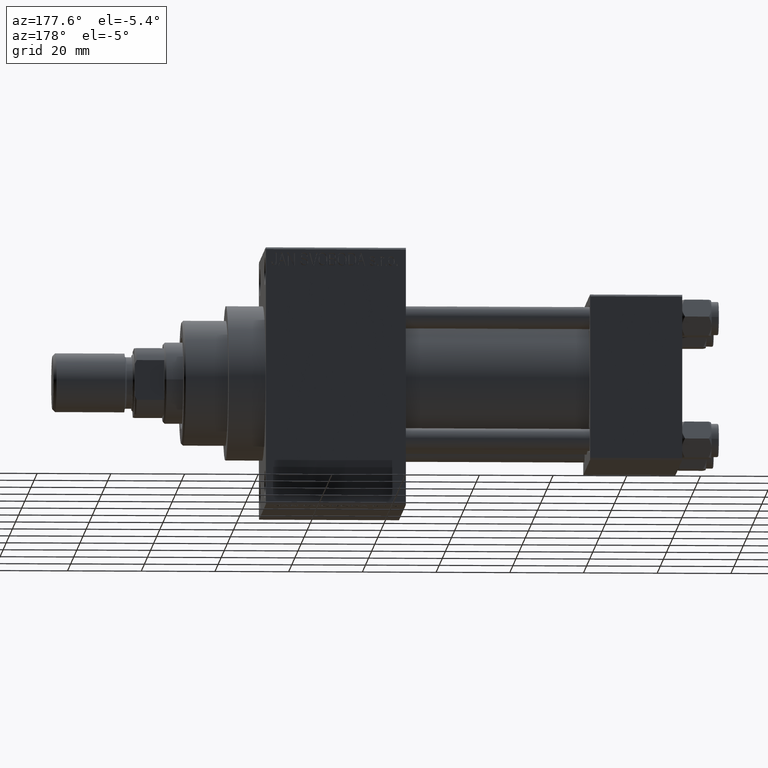
[diagram: clean part render]
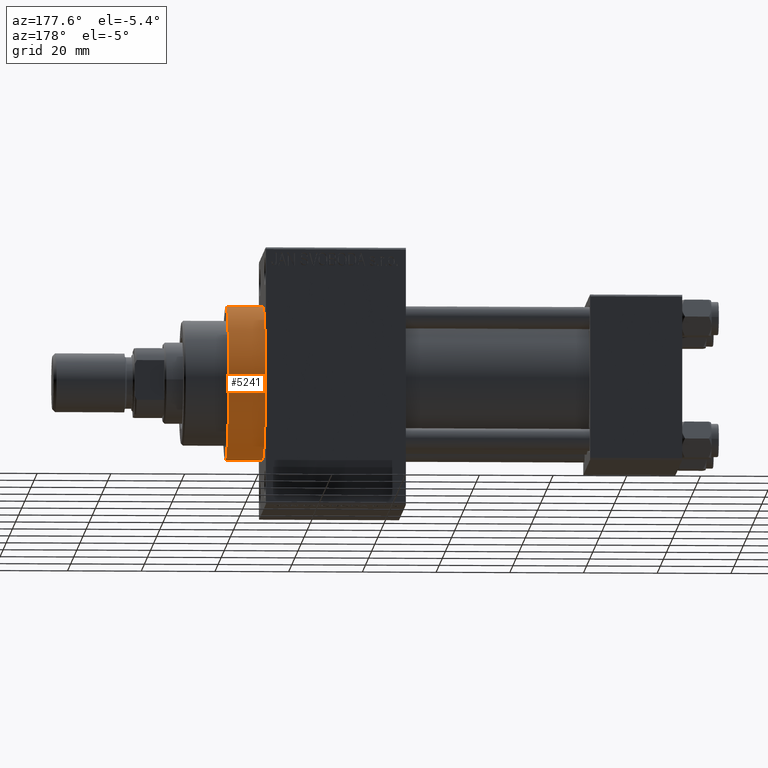
[diagram: same view with one face highlighted and labeled with its STEP entity id]
A machine part, auxiliary view. The second image highlights one B-rep face of the part: STEP entity #5241.
In plain terms, the highlighted cylindrical surface (partial cylindrical patch) has radius 21 mm, axis along (-1, -0, -0).
Its self-contained STEP definition (entity closure, byte-faithful):
#874 = CARTESIAN_POINT ( 'NONE',  ( 123.0000000000000142, 0.000000000000000000, 0.000000000000000000 ) ) ;
#1128 = LINE ( 'NONE', #15574, #33468 ) ;
#2291 = DIRECTION ( 'NONE',  ( 0.000000000000000000, 0.000000000000000000, -1.000000000000000000 ) ) ;
#2499 = CARTESIAN_POINT ( 'NONE',  ( 113.0000000000000142, 0.000000000000000000, 21.00000000000000000 ) ) ;
#4898 = CARTESIAN_POINT ( 'NONE',  ( 113.0000000000000142, 2.571758278209441661E-15, -21.00000000000000000 ) ) ;
#5241 = ADVANCED_FACE ( 'NONE', ( #44606 ), #45545, .T. ) ;
#5858 = LINE ( 'NONE', #42685, #30289 ) ;
#6132 = CARTESIAN_POINT ( 'NONE',  ( 113.0000000000000142, 0.000000000000000000, 0.000000000000000000 ) ) ;
#9237 = DIRECTION ( 'NONE',  ( -1.000000000000000000, -0.000000000000000000, -0.000000000000000000 ) ) ;
#12259 = CIRCLE ( 'NONE', #19924, 21.00000000000000000 ) ;
#12441 = DIRECTION ( 'NONE',  ( -1.000000000000000000, -0.000000000000000000, -0.000000000000000000 ) ) ;
#13165 = CARTESIAN_POINT ( 'NONE',  ( 123.0000000000000142, 0.000000000000000000, 21.00000000000000000 ) ) ;
#15429 = EDGE_CURVE ( 'NONE', #29722, #28702, #5858, .T. ) ;
#15574 = CARTESIAN_POINT ( 'NONE',  ( 123.0000000000000142, 2.571758278209441661E-15, -21.00000000000000000 ) ) ;
#17644 = EDGE_CURVE ( 'NONE', #36155, #44417, #1128, .T. ) ;
#19924 = AXIS2_PLACEMENT_3D ( 'NONE', #874, #37660, #34302 ) ;
#20673 = CIRCLE ( 'NONE', #32981, 21.00000000000000000 ) ;
#22498 = EDGE_LOOP ( 'NONE', ( #28756, #39135, #22649, #25696 ) ) ;
#22649 = ORIENTED_EDGE ( 'NONE', *, *, #25854, .T. ) ;
#25696 = ORIENTED_EDGE ( 'NONE', *, *, #15429, .F. ) ;
#25854 = EDGE_CURVE ( 'NONE', #44417, #28702, #20673, .T. ) ;
#27240 = DIRECTION ( 'NONE',  ( 0.000000000000000000, 0.000000000000000000, 1.000000000000000000 ) ) ;
#28702 = VERTEX_POINT ( 'NONE', #2499 ) ;
#28756 = ORIENTED_EDGE ( 'NONE', *, *, #30676, .F. ) ;
#29722 = VERTEX_POINT ( 'NONE', #13165 ) ;
#30289 = VECTOR ( 'NONE', #9237, 1000.000000000000000 ) ;
#30676 = EDGE_CURVE ( 'NONE', #36155, #29722, #12259, .T. ) ;
#32981 = AXIS2_PLACEMENT_3D ( 'NONE', #6132, #35241, #2291 ) ;
#33468 = VECTOR ( 'NONE', #12441, 1000.000000000000000 ) ;
#34302 = DIRECTION ( 'NONE',  ( 0.000000000000000000, 0.000000000000000000, -1.000000000000000000 ) ) ;
#34702 = DIRECTION ( 'NONE',  ( -1.000000000000000000, -0.000000000000000000, -0.000000000000000000 ) ) ;
#35241 = DIRECTION ( 'NONE',  ( 1.000000000000000000, 0.000000000000000000, 0.000000000000000000 ) ) ;
#36155 = VERTEX_POINT ( 'NONE', #37121 ) ;
#37121 = CARTESIAN_POINT ( 'NONE',  ( 123.0000000000000142, 2.571758278209441661E-15, -21.00000000000000000 ) ) ;
#37660 = DIRECTION ( 'NONE',  ( 1.000000000000000000, 0.000000000000000000, 0.000000000000000000 ) ) ;
#39135 = ORIENTED_EDGE ( 'NONE', *, *, #17644, .T. ) ;
#42157 = CARTESIAN_POINT ( 'NONE',  ( 123.0000000000000142, 0.000000000000000000, 0.000000000000000000 ) ) ;
#42685 = CARTESIAN_POINT ( 'NONE',  ( 123.0000000000000142, 0.000000000000000000, 21.00000000000000000 ) ) ;
#44417 = VERTEX_POINT ( 'NONE', #4898 ) ;
#44606 = FACE_OUTER_BOUND ( 'NONE', #22498, .T. ) ;
#45545 = CYLINDRICAL_SURFACE ( 'NONE', #46354, 21.00000000000000000 ) ;
#46354 = AXIS2_PLACEMENT_3D ( 'NONE', #42157, #34702, #27240 ) ;